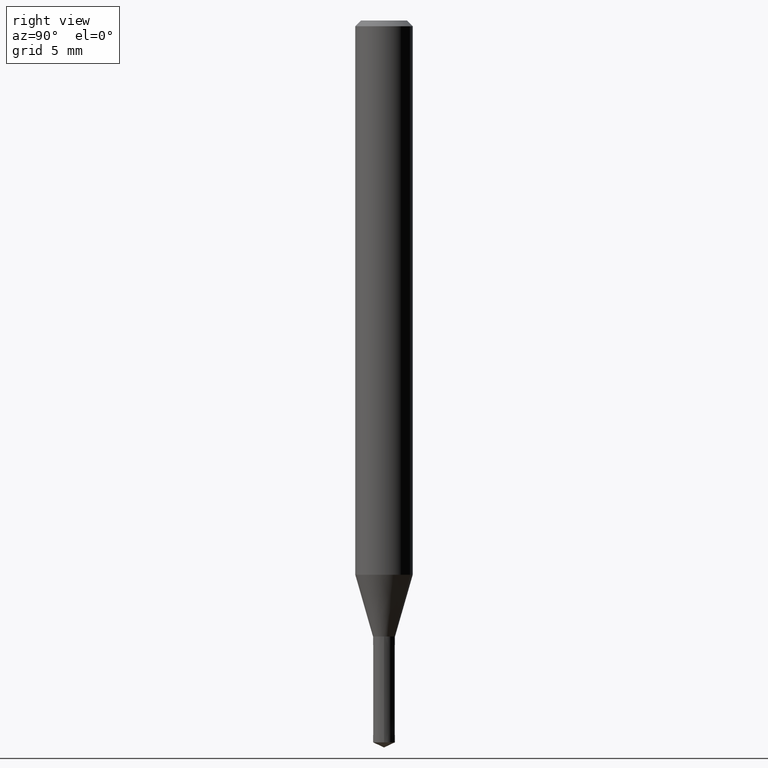
[diagram: clean part render]
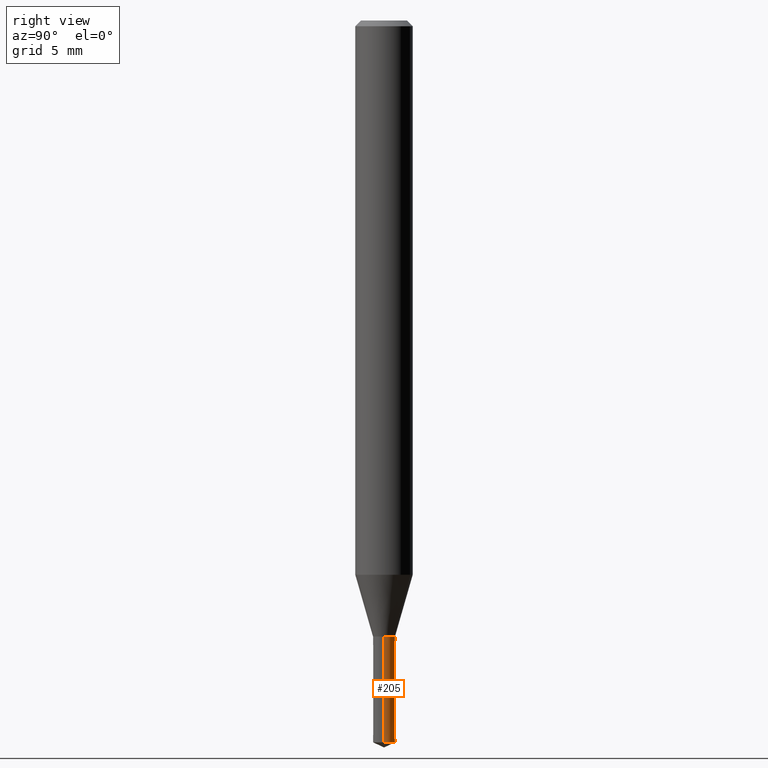
[diagram: same view with one face highlighted and labeled with its STEP entity id]
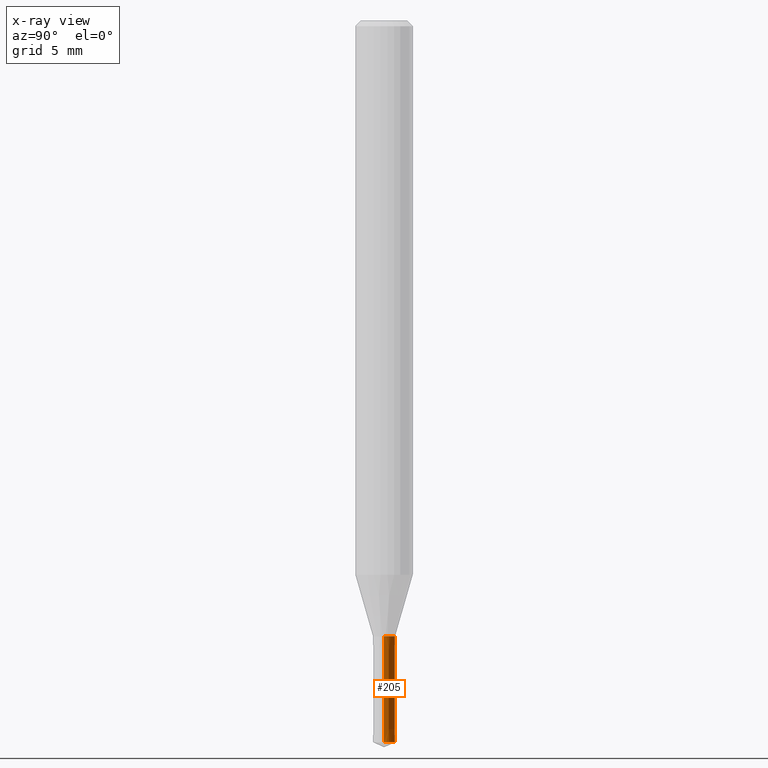
[diagram: x-ray of the same camera — body ghosted, the highlighted face saturated]
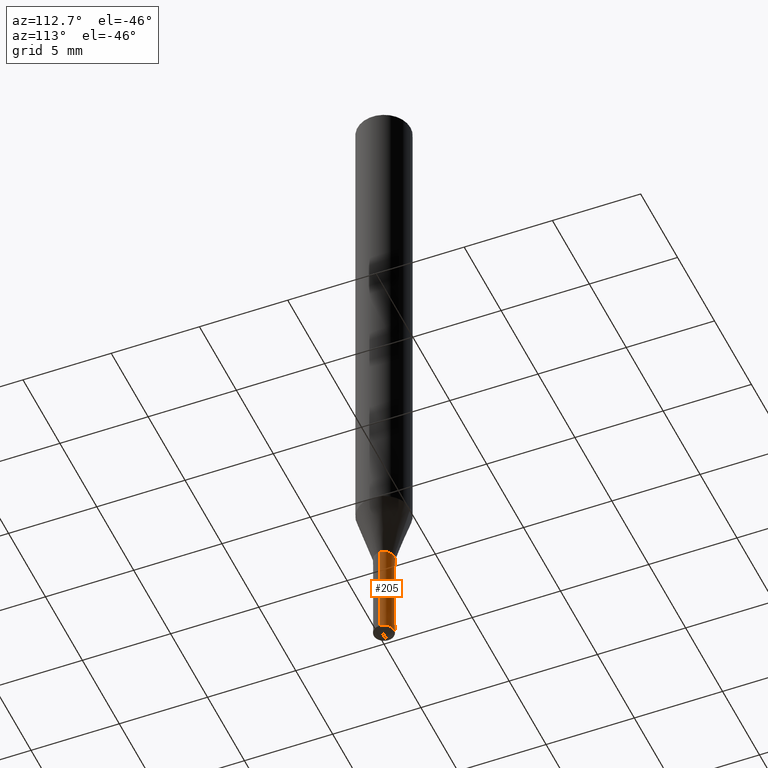
[diagram: same view with one face highlighted and labeled with its STEP entity id]
A machine part, right view. The second image highlights one B-rep face of the part: STEP entity #205.
The next image is the same camera in x-ray: the body ghosted, the highlighted face saturated — about 0% of this face is hidden behind the body in this view.
A second angle (auxiliary view) of the same face is appended — the face is thin or edge-on in the first view.
In plain terms, the highlighted conical surface has half-angle 0.01 deg.
Its self-contained STEP definition (entity closure, byte-faithful):
#105=EDGE_CURVE('',#189,#117,#242,.T.);
#117=VERTEX_POINT('',#255);
#127=VERTEX_POINT('',#266);
#133=EDGE_CURVE('',#157,#189,#273,.T.);
#145=EDGE_CURVE('',#127,#157,#286,.T.);
#147=EDGE_CURVE('',#127,#117,#288,.T.);
#157=VERTEX_POINT('',#299);
#189=VERTEX_POINT('',#334);
#205=ADVANCED_FACE('',(#354),#355,.T.);
#242=LINE('',#387,#388);
#255=CARTESIAN_POINT('',(0.576,7.05373259801689E-017,-32.2));
#266=CARTESIAN_POINT('',(-0.576,0.0,-32.2));
#273=CIRCLE('',#425,0.575);
#286=LINE('',#443,#444);
#288=CIRCLE('',#447,0.576);
#299=CARTESIAN_POINT('',(-0.575,0.0,-37.7318731));
#334=CARTESIAN_POINT('',(0.575,7.04148653447867E-017,-37.7318731));
#354=FACE_OUTER_BOUND('',#532,.T.);
#355=CONICAL_SURFACE('',#533,0.5755,0.000180770594522013);
#387=CARTESIAN_POINT('',(0.5755,7.04760956624778E-017,-34.96593655));
#388=VECTOR('',#554,1.0);
#425=AXIS2_PLACEMENT_3D('',#588,#589,#590);
#443=CARTESIAN_POINT('',(-0.5755,-7.04760956624778E-017,-34.96593655));
#444=VECTOR('',#606,1.0);
#447=AXIS2_PLACEMENT_3D('',#607,#608,#609);
#532=EDGE_LOOP('',(#696,#697,#698,#699));
#533=AXIS2_PLACEMENT_3D('',#700,#701,#702);
#554=DIRECTION('',(0.000180770593537476,2.21372817430235E-020,0.999999983660996));
#588=CARTESIAN_POINT('',(0.0,0.0,-37.7318731));
#589=DIRECTION('',(0.0,0.0,-1.0));
#590=DIRECTION('',(-1.0,0.0,0.0));
#606=DIRECTION('',(0.000180770593537476,2.21372817430235E-020,-0.999999983660996));
#607=CARTESIAN_POINT('',(0.0,0.0,-32.2));
#608=DIRECTION('',(0.0,0.0,-1.0));
#609=DIRECTION('',(-1.0,0.0,0.0));
#696=ORIENTED_EDGE('',*,*,#145,.F.);
#697=ORIENTED_EDGE('',*,*,#147,.T.);
#698=ORIENTED_EDGE('',*,*,#105,.F.);
#699=ORIENTED_EDGE('',*,*,#133,.F.);
#700=CARTESIAN_POINT('',(0.0,0.0,-34.96593655));
#701=DIRECTION('',(-0.0,-0.0,1.0));
#702=DIRECTION('',(-1.0,0.0,0.0));